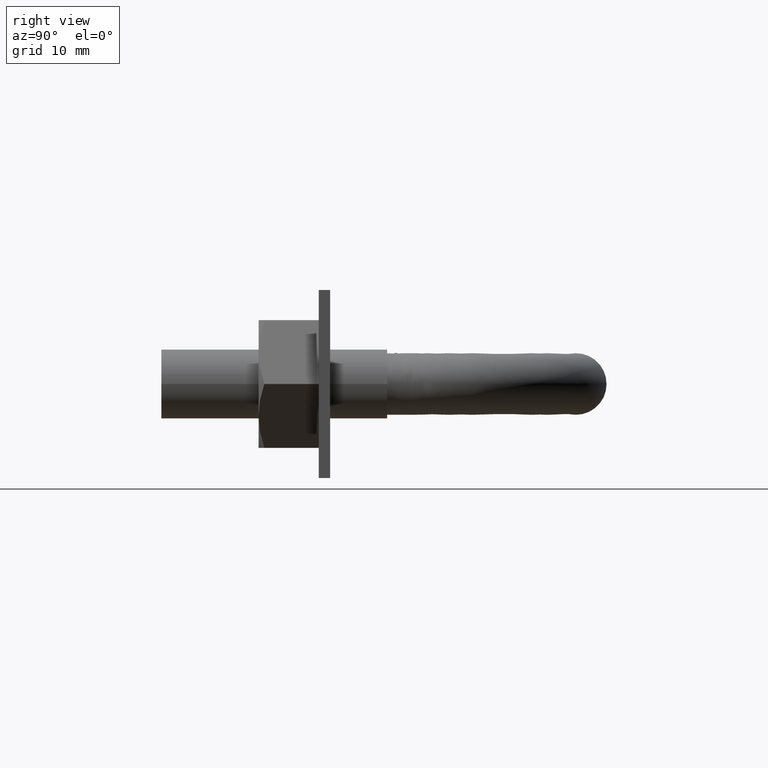
[diagram: clean part render]
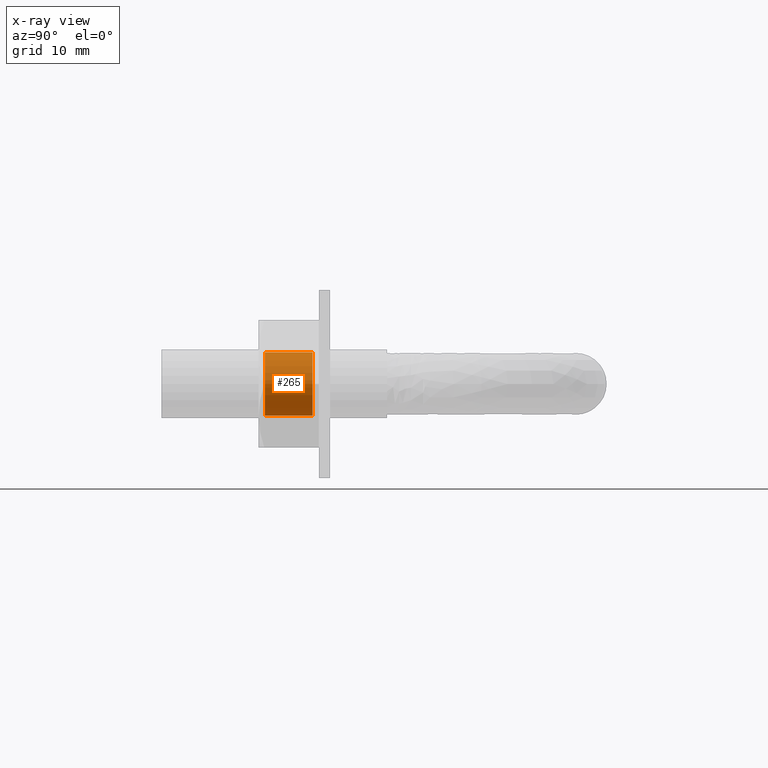
[diagram: x-ray — body ghosted, one internal face saturated and labeled with its STEP entity id]
A machine part, right view, then the same camera in x-ray: the body is ghosted and one INTERNAL B-rep face — a face not visible from any outside direction — is saturated and labeled: STEP entity #265.
In plain terms, the highlighted cylindrical surface (bore or boss wall) has radius 4.188 mm, axis along (-0, -1, -0).
Its self-contained STEP definition (entity closure, byte-faithful):
#265 = ADVANCED_FACE( '', ( #395, #396 ), #397, .F. );
#395 = FACE_OUTER_BOUND( '', #715, .T. );
#396 = FACE_OUTER_BOUND( '', #716, .T. );
#397 = CYLINDRICAL_SURFACE( '', #717, 4.18800000000000 );
#715 = EDGE_LOOP( '', ( #1115 ) );
#716 = EDGE_LOOP( '', ( #1116 ) );
#717 = AXIS2_PLACEMENT_3D( '', #1117, #1118, #1119 );
#1115 = ORIENTED_EDGE( '', *, *, #1403, .T. );
#1116 = ORIENTED_EDGE( '', *, *, #1402, .F. );
#1117 = CARTESIAN_POINT( '', ( -20.0000000000000, -9.08000000000001, 0.000000000000000 ) );
#1118 = DIRECTION( '', ( -6.12303176911189E-017, -1.00000000000000, -3.46487494474495E-065 ) );
#1119 = DIRECTION( '', ( 3.74915180455534E-033, -2.29561756065155E-049, -1.00000000000000 ) );
#1402 = EDGE_CURVE( '', #1630, #1630, #1631, .T. );
#1403 = EDGE_CURVE( '', #1632, #1632, #1633, .T. );
#1630 = VERTEX_POINT( '', #2030 );
#1631 = CIRCLE( '', #2031, 4.18800000000000 );
#1632 = VERTEX_POINT( '', #2032 );
#1633 = CIRCLE( '', #2033, 4.18800000000000 );
#2030 = CARTESIAN_POINT( '', ( -20.0000000000000, -16.2680000000000, -4.18800000000000 ) );
#2031 = AXIS2_PLACEMENT_3D( '', #2376, #2377, #2378 );
#2032 = CARTESIAN_POINT( '', ( -20.0000000000000, -9.89200000000000, -4.18800000000000 ) );
#2033 = AXIS2_PLACEMENT_3D( '', #2379, #2380, #2381 );
#2376 = CARTESIAN_POINT( '', ( -20.0000000000000, -16.2680000000000, 3.55934680377618E-065 ) );
#2377 = DIRECTION( '', ( 6.12303176911189E-017, 1.00000000000000, 3.46487494474495E-065 ) );
#2378 = DIRECTION( '', ( 3.74915180455534E-033, -2.29561756065155E-049, -1.00000000000000 ) );
#2379 = CARTESIAN_POINT( '', ( -20.0000000000000, -9.89200000000000, 4.02085365145556E-066 ) );
#2380 = DIRECTION( '', ( 6.12303176911189E-017, 1.00000000000000, 3.46487494474495E-065 ) );
#2381 = DIRECTION( '', ( 3.74915180455534E-033, -2.29561756065155E-049, -1.00000000000000 ) );